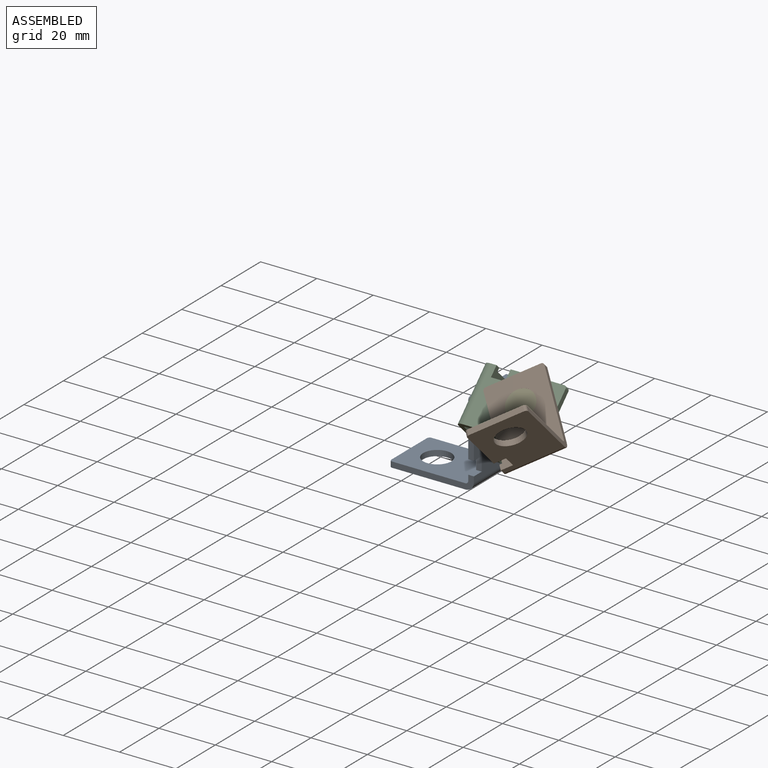
[diagram: assembled view]
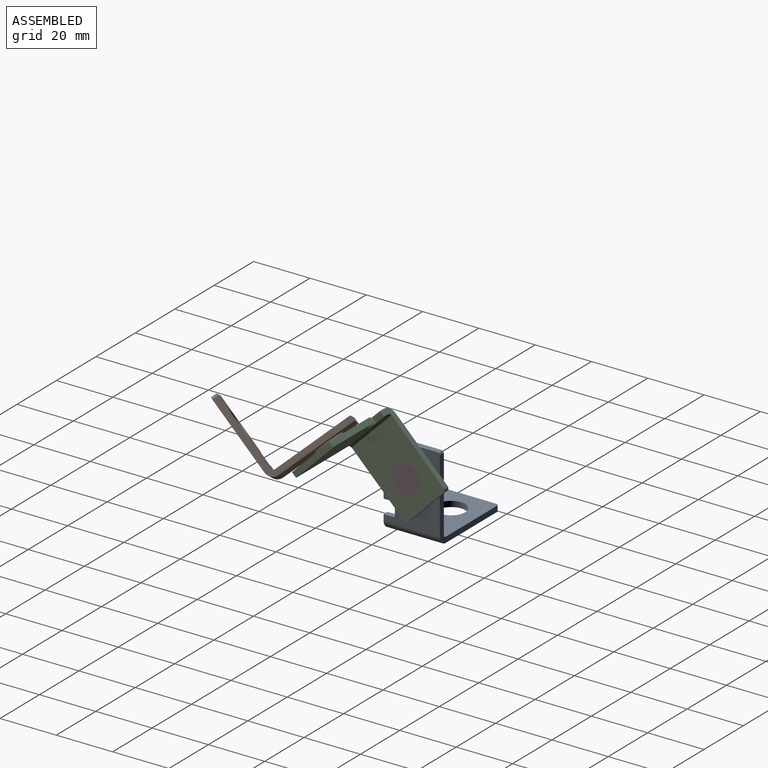
[diagram: assembled view, second angle]
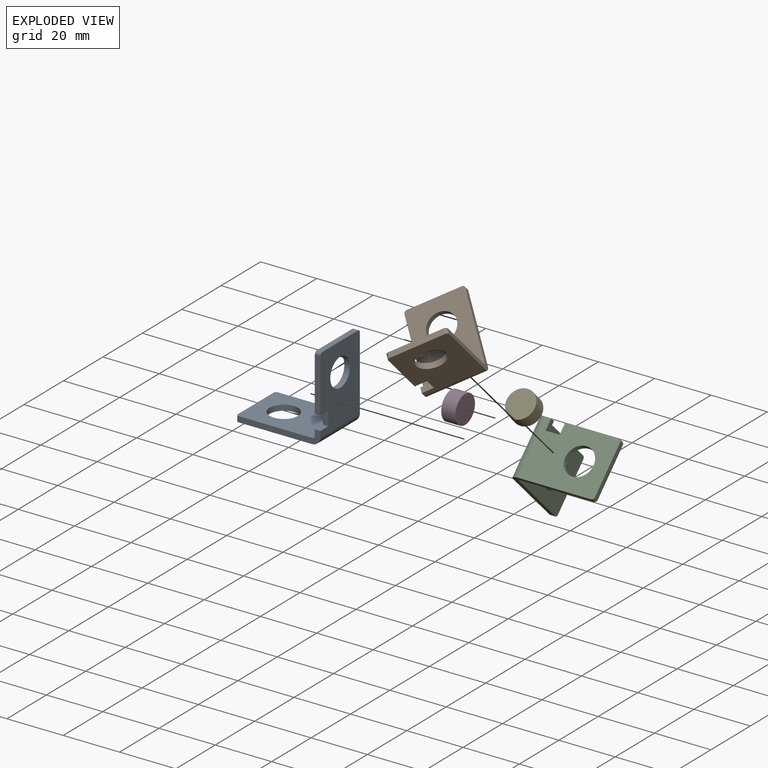
[diagram: exploded view]
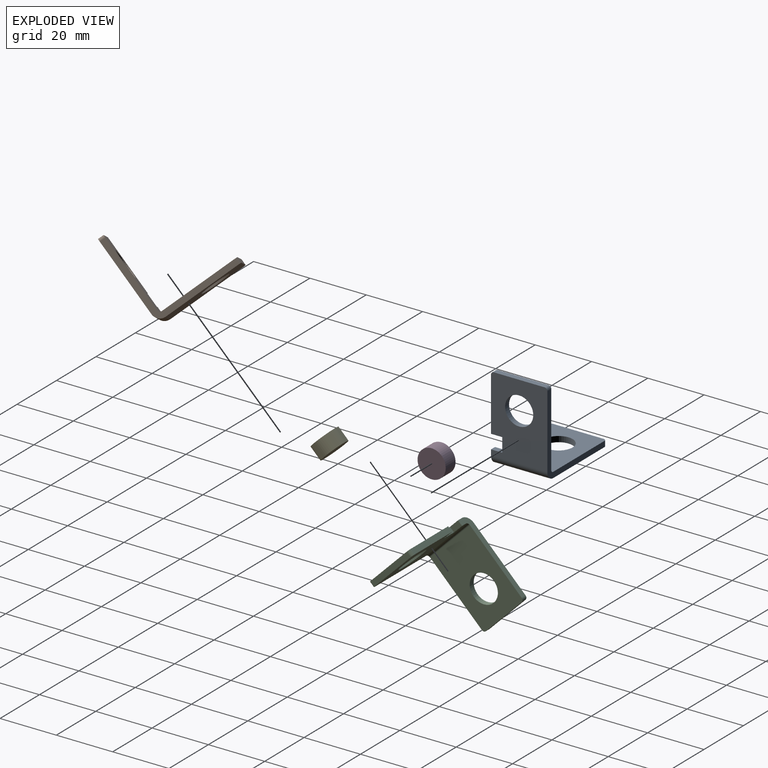
[diagram: exploded view, second angle]
ASSEMBLY  parts=5 mates=4
PART A: 20 faces, bbox 30x20x30 mm
  f0: plane 18x2mm, normal (-1,0,0), area 36mm2, adj f1,f6,f7,f8
  f1: cylinder r=1mm len=2mm, axis (0,0,-1), area 3.1mm2, adj f0,f2,f7,f8
  f2: plane 29x5mm, normal (0,-1,0), area 62.3mm2, adj f1,f3,f7,f8,f9,f17,f18,f19
  f3: plane 27x20mm, normal (1,0,0), area 441mm2, adj f2,f4,f9,f10,f11,f12,f13,f14
  f4: plane 29x29mm, normal (0,1,0), area 110.3mm2, adj f3,f6,f7,f8,f10,f17,f18,f19
  f5: cylinder r=5mm len=10mm, axis (0,0,-1), area 62.8mm2, adj f7,f8
  f6: cylinder r=1mm len=2mm, axis (0,0,-1), area 3.1mm2, adj f0,f4,f7,f8
  f7: plane 27x20mm, normal (0,0,1), area 461mm2, adj f0,f1,f2,f4,f5,f6,f19
  f8: plane 27x20mm, normal (0,0,-1), area 461mm2, adj f0,f1,f2,f4,f5,f6,f18
  f9: plane 4x2mm, normal (0,0,1), area 8mm2, adj f2,f3,f16,f17
  f10: cylinder r=1mm len=2mm, axis (1,0,0), area 3.1mm2, adj f3,f4,f11,f17
  f11: plane 18x2mm, normal (0,0,1), area 36mm2, adj f3,f10,f12,f17
  f12: cylinder r=1mm len=2mm, axis (1,0,0), area 3.1mm2, adj f3,f11,f13,f17
  f13: plane 19x2mm, normal (0,-1,0), area 38mm2, adj f3,f12,f14,f17
  f14: plane 4x2mm, normal (0,0,-1), area 8mm2, adj f3,f13,f16,f17
  f15: cylinder r=5mm len=10mm, axis (1,0,0), area 62.8mm2, adj f3,f17
  f16: plane 5x2mm, normal (0,-1,0), area 10mm2, adj f3,f9,f14,f17
  f17: plane 27x20mm, normal (-1,0,0), area 441mm2, adj f2,f4,f9,f10,f11,f12,f13,f14
  f18: cylinder r=3mm len=20mm, axis (0,1,0), area 94.2mm2, adj f2,f3,f4,f8
  f19: cylinder r=1mm len=20mm, axis (0,-1,0), area 31.4mm2, adj f2,f4,f7,f17
PART B: same geometry as A
PART C: same geometry as A
PART D: 3 faces, bbox 10x10x5 mm
  f0: cylinder r=5mm len=10mm, axis (0,0,-1), area 157.1mm2, adj f1,f2
  f1: plane 10x10mm, normal (0,0,1), area 78.5mm2, adj f0
  f2: plane 10x10mm, normal (0,0,-1), area 78.5mm2, adj f0
PART E: same geometry as D
PLACE A rot(axis=(0.72,0.51,0.47),0deg) t=(0.11,45.29,-3.84)mm
PLACE B rot(axis=(0.63,0.3,-0.71),66.3deg) t=(52.35,30.4,40.97)mm
PLACE C rot(axis=(-0.68,0.28,-0.68),148.6deg) t=(31.11,35.29,2.02)mm
PLACE D rot(axis=(0,-1,0),90deg) t=(33.11,35.29,16.16)mm
PLACE E rot(axis=(-1,0,0),135deg) t=(51.11,19.03,32.43)mm
MATE fastened B.f5 <-> E.f0  axis (0,-0.71,0.71) through (51.11,19.03,32.43)mm
MATE fastened E.f0 <-> C.f15  axis (0,0.71,-0.71) through (51.11,22.56,28.89)mm
MATE fastened C.f5 <-> D.f0  axis (1,0,0) through (33.11,35.29,16.16)mm
MATE fastened D.f0 <-> A.f15  axis (-1,0,0) through (28.11,35.29,16.16)mm
